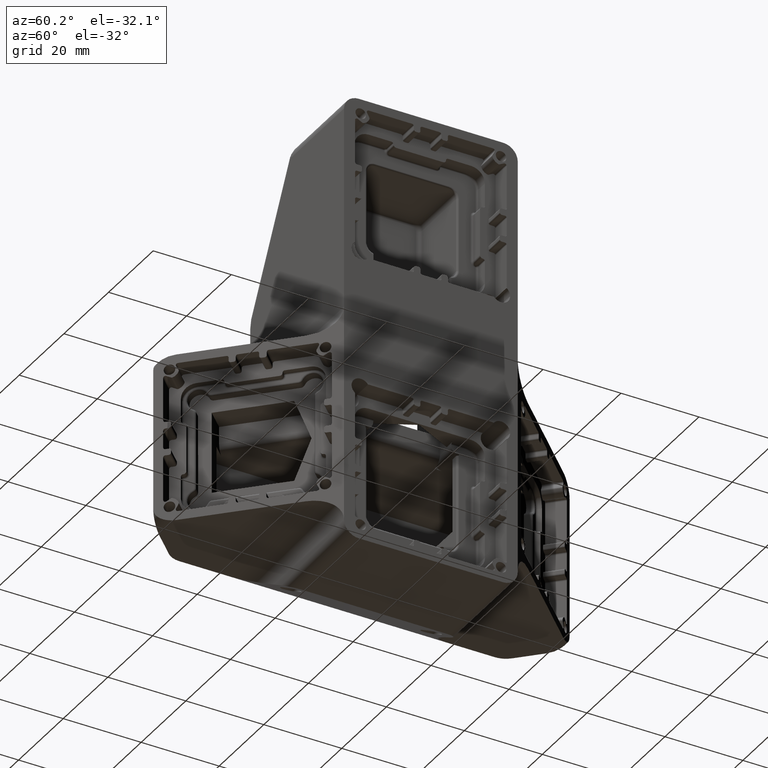
[diagram: clean part render]
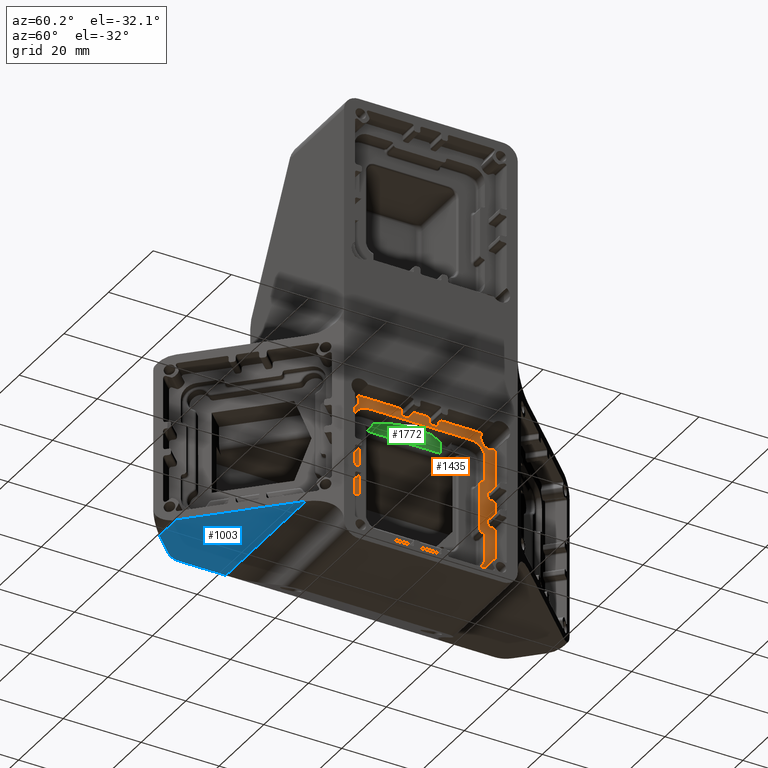
[diagram: same view with three faces highlighted in distinct colors, each labeled with its STEP entity id]
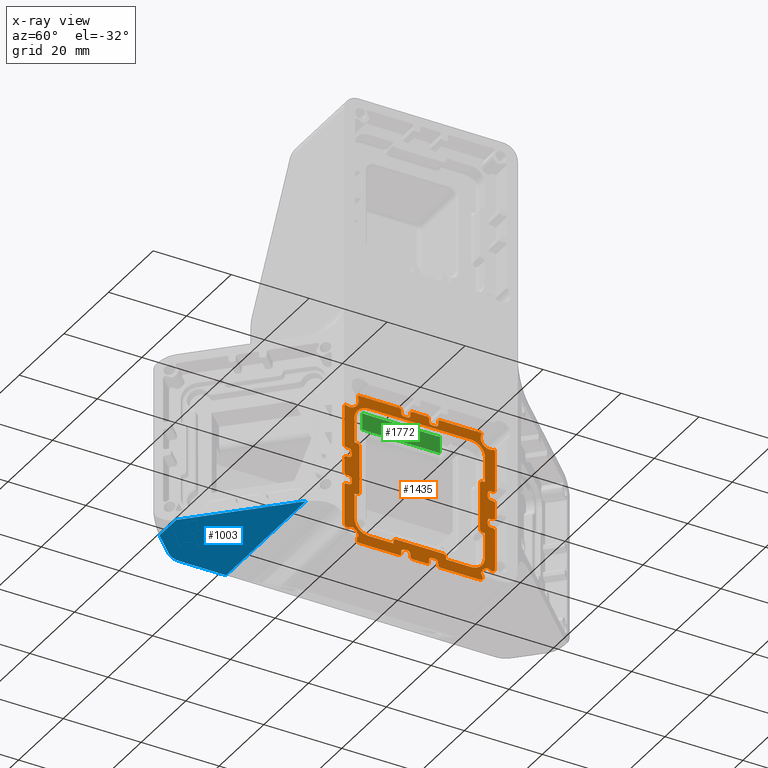
[diagram: x-ray of the same camera — body ghosted, the three highlighted faces saturated]
A machine part, auxiliary view with three faces highlighted in distinct colors.
The next image is the same camera in x-ray (body ghosted, the three faces saturated) — at least one of them is partly hidden behind the body in this view.
Their STEP definitions:

[orange] entity #1435 — the highlighted planar face has unit normal (1, 0, 0).
#527=FACE_BOUND('',#3645,.F.);
#701=PLANE('',#24963);
#1435=ADVANCED_FACE('',(#527,#2531),#701,.T.);
#2531=FACE_OUTER_BOUND('',#3646,.F.);
#3645=EDGE_LOOP('',(#6514,#6515,#6516,#6517,#6518,#6519,#6520,#6521,#6522,
#6523,#6524,#6525,#6526,#6527,#6528,#6529,#6530,#6531,#6532,#6533,#6534,
#6535,#6536,#6537,#6538,#6539,#6540,#6541,#6542,#6543,#6544,#6545,#6546,
#6547,#6548,#6549,#6550,#6551,#6552));
#3646=EDGE_LOOP('',(#6553,#6554,#6555,#6556,#6557,#6558,#6559,#6560,#6561,
#6562,#6563,#6564,#6565,#6566,#6567,#6568,#6569,#6570,#6571,#6572,#6573,
#6574,#6575,#6576,#6577,#6578,#6579,#6580,#6581,#6582,#6583,#6584,#6585,
#6586,#6587,#6588,#6589,#6590,#6591,#6592,#6593,#6594,#6595,#6596,#6597,
#6598,#6599,#6600,#6601,#6602,#6603,#6604,#6605,#6606,#6607,#6608,#6609,
#6610,#6611,#6612,#6613,#6614,#6615,#6616,#6617,#6618,#6619,#6620,#6621,
#6622,#6623,#6624,#6625,#6626,#6627,#6628,#6629,#6630,#6631,#6632,#6633,
#6634,#6635,#6636,#6637,#6638,#6639,#6640,#6641,#6642,#6643,#6644,#6645,
#6646));
#6514=ORIENTED_EDGE('',*,*,#15815,.F.);
#6515=ORIENTED_EDGE('',*,*,#15795,.F.);
#6516=ORIENTED_EDGE('',*,*,#15796,.F.);
#6517=ORIENTED_EDGE('',*,*,#15797,.F.);
#6518=ORIENTED_EDGE('',*,*,#15798,.F.);
#6519=ORIENTED_EDGE('',*,*,#15779,.F.);
#6520=ORIENTED_EDGE('',*,*,#15777,.F.);
#6521=ORIENTED_EDGE('',*,*,#15778,.F.);
#6522=ORIENTED_EDGE('',*,*,#15799,.T.);
#6523=ORIENTED_EDGE('',*,*,#15800,.F.);
#6524=ORIENTED_EDGE('',*,*,#15801,.T.);
#6525=ORIENTED_EDGE('',*,*,#15802,.F.);
#6526=ORIENTED_EDGE('',*,*,#15782,.F.);
#6527=ORIENTED_EDGE('',*,*,#15780,.F.);
#6528=ORIENTED_EDGE('',*,*,#15781,.F.);
#6529=ORIENTED_EDGE('',*,*,#15803,.F.);
#6530=ORIENTED_EDGE('',*,*,#15804,.F.);
#6531=ORIENTED_EDGE('',*,*,#15785,.F.);
#6532=ORIENTED_EDGE('',*,*,#15783,.F.);
#6533=ORIENTED_EDGE('',*,*,#15784,.F.);
#6534=ORIENTED_EDGE('',*,*,#15805,.T.);
#6535=ORIENTED_EDGE('',*,*,#15806,.F.);
#6536=ORIENTED_EDGE('',*,*,#15807,.T.);
#6537=ORIENTED_EDGE('',*,*,#15808,.F.);
#6538=ORIENTED_EDGE('',*,*,#15788,.F.);
#6539=ORIENTED_EDGE('',*,*,#15786,.F.);
#6540=ORIENTED_EDGE('',*,*,#15787,.F.);
#6541=ORIENTED_EDGE('',*,*,#15809,.F.);
#6542=ORIENTED_EDGE('',*,*,#15810,.F.);
#6543=ORIENTED_EDGE('',*,*,#15791,.F.);
#6544=ORIENTED_EDGE('',*,*,#15789,.F.);
#6545=ORIENTED_EDGE('',*,*,#15790,.F.);
#6546=ORIENTED_EDGE('',*,*,#15811,.T.);
#6547=ORIENTED_EDGE('',*,*,#15812,.F.);
#6548=ORIENTED_EDGE('',*,*,#15813,.T.);
#6549=ORIENTED_EDGE('',*,*,#15814,.F.);
#6550=ORIENTED_EDGE('',*,*,#15794,.F.);
#6551=ORIENTED_EDGE('',*,*,#15792,.F.);
#6552=ORIENTED_EDGE('',*,*,#15793,.F.);
#6553=ORIENTED_EDGE('',*,*,#15816,.F.);
#6554=ORIENTED_EDGE('',*,*,#15775,.T.);
#6555=ORIENTED_EDGE('',*,*,#15774,.F.);
#6556=ORIENTED_EDGE('',*,*,#15773,.T.);
#6557=ORIENTED_EDGE('',*,*,#15772,.F.);
#6558=ORIENTED_EDGE('',*,*,#15771,.F.);
#6559=ORIENTED_EDGE('',*,*,#15770,.F.);
#6560=ORIENTED_EDGE('',*,*,#15769,.F.);
#6561=ORIENTED_EDGE('',*,*,#15768,.F.);
#6562=ORIENTED_EDGE('',*,*,#15767,.T.);
#6563=ORIENTED_EDGE('',*,*,#15766,.F.);
#6564=ORIENTED_EDGE('',*,*,#15765,.T.);
#6565=ORIENTED_EDGE('',*,*,#15764,.F.);
#6566=ORIENTED_EDGE('',*,*,#15763,.F.);
#6567=ORIENTED_EDGE('',*,*,#15762,.F.);
#6568=ORIENTED_EDGE('',*,*,#15761,.F.);
#6569=ORIENTED_EDGE('',*,*,#15760,.F.);
#6570=ORIENTED_EDGE('',*,*,#15759,.T.);
#6571=ORIENTED_EDGE('',*,*,#15758,.F.);
#6572=ORIENTED_EDGE('',*,*,#15756,.T.);
#6573=ORIENTED_EDGE('',*,*,#15817,.F.);
#6574=ORIENTED_EDGE('',*,*,#15818,.F.);
#6575=ORIENTED_EDGE('',*,*,#15819,.F.);
#6576=ORIENTED_EDGE('',*,*,#15820,.F.);
#6577=ORIENTED_EDGE('',*,*,#15821,.F.);
#6578=ORIENTED_EDGE('',*,*,#15754,.T.);
#6579=ORIENTED_EDGE('',*,*,#15753,.F.);
#6580=ORIENTED_EDGE('',*,*,#15752,.T.);
#6581=ORIENTED_EDGE('',*,*,#15751,.F.);
#6582=ORIENTED_EDGE('',*,*,#15750,.F.);
#6583=ORIENTED_EDGE('',*,*,#15749,.F.);
#6584=ORIENTED_EDGE('',*,*,#15748,.F.);
#6585=ORIENTED_EDGE('',*,*,#15747,.F.);
#6586=ORIENTED_EDGE('',*,*,#15746,.T.);
#6587=ORIENTED_EDGE('',*,*,#15745,.F.);
#6588=ORIENTED_EDGE('',*,*,#15744,.T.);
#6589=ORIENTED_EDGE('',*,*,#15743,.F.);
#6590=ORIENTED_EDGE('',*,*,#15742,.F.);
#6591=ORIENTED_EDGE('',*,*,#15741,.F.);
#6592=ORIENTED_EDGE('',*,*,#15740,.F.);
#6593=ORIENTED_EDGE('',*,*,#15739,.F.);
#6594=ORIENTED_EDGE('',*,*,#15738,.T.);
#6595=ORIENTED_EDGE('',*,*,#15737,.F.);
#6596=ORIENTED_EDGE('',*,*,#15736,.T.);
#6597=ORIENTED_EDGE('',*,*,#16965,.F.);
#6598=ORIENTED_EDGE('',*,*,#14805,.F.);
#6599=ORIENTED_EDGE('',*,*,#16966,.F.);
#6600=ORIENTED_EDGE('',*,*,#16964,.F.);
#6601=ORIENTED_EDGE('',*,*,#15735,.T.);
#6602=ORIENTED_EDGE('',*,*,#15734,.F.);
#6603=ORIENTED_EDGE('',*,*,#15733,.T.);
#6604=ORIENTED_EDGE('',*,*,#15732,.F.);
#6605=ORIENTED_EDGE('',*,*,#15731,.F.);
#6606=ORIENTED_EDGE('',*,*,#15730,.F.);
#6607=ORIENTED_EDGE('',*,*,#15729,.F.);
#6608=ORIENTED_EDGE('',*,*,#15728,.F.);
#6609=ORIENTED_EDGE('',*,*,#15727,.T.);
#6610=ORIENTED_EDGE('',*,*,#15726,.F.);
#6611=ORIENTED_EDGE('',*,*,#15725,.T.);
#6612=ORIENTED_EDGE('',*,*,#15724,.F.);
#6613=ORIENTED_EDGE('',*,*,#15723,.F.);
#6614=ORIENTED_EDGE('',*,*,#15722,.F.);
#6615=ORIENTED_EDGE('',*,*,#15721,.F.);
#6616=ORIENTED_EDGE('',*,*,#15720,.F.);
#6617=ORIENTED_EDGE('',*,*,#15719,.T.);
#6618=ORIENTED_EDGE('',*,*,#15718,.F.);
#6619=ORIENTED_EDGE('',*,*,#15717,.T.);
#6620=ORIENTED_EDGE('',*,*,#16961,.F.);
#6621=ORIENTED_EDGE('',*,*,#16963,.F.);
#6622=ORIENTED_EDGE('',*,*,#14808,.F.);
#6623=ORIENTED_EDGE('',*,*,#16962,.F.);
#6624=ORIENTED_EDGE('',*,*,#15716,.T.);
#6625=ORIENTED_EDGE('',*,*,#15715,.F.);
#6626=ORIENTED_EDGE('',*,*,#15714,.T.);
#6627=ORIENTED_EDGE('',*,*,#15713,.F.);
#6628=ORIENTED_EDGE('',*,*,#15712,.F.);
#6629=ORIENTED_EDGE('',*,*,#15711,.F.);
#6630=ORIENTED_EDGE('',*,*,#15710,.F.);
#6631=ORIENTED_EDGE('',*,*,#15709,.F.);
#6632=ORIENTED_EDGE('',*,*,#15708,.T.);
#6633=ORIENTED_EDGE('',*,*,#15707,.F.);
#6634=ORIENTED_EDGE('',*,*,#15706,.T.);
#6635=ORIENTED_EDGE('',*,*,#15705,.F.);
#6636=ORIENTED_EDGE('',*,*,#15704,.F.);
#6637=ORIENTED_EDGE('',*,*,#15703,.F.);
#6638=ORIENTED_EDGE('',*,*,#15702,.F.);
#6639=ORIENTED_EDGE('',*,*,#15701,.F.);
#6640=ORIENTED_EDGE('',*,*,#15700,.T.);
#6641=ORIENTED_EDGE('',*,*,#15699,.F.);
#6642=ORIENTED_EDGE('',*,*,#15697,.T.);
#6643=ORIENTED_EDGE('',*,*,#15822,.F.);
#6644=ORIENTED_EDGE('',*,*,#15823,.F.);
#6645=ORIENTED_EDGE('',*,*,#15824,.F.);
#6646=ORIENTED_EDGE('',*,*,#15825,.F.);
#13398=CIRCLE('',#23351,2.35);
#13399=CIRCLE('',#23352,2.35);
#13772=CIRCLE('',#23725,0.800000000000011);
#13773=CIRCLE('',#23726,0.5);
#13774=CIRCLE('',#23727,0.8);
#13775=CIRCLE('',#23728,0.800000000000001);
#13776=CIRCLE('',#23729,0.5);
#13777=CIRCLE('',#23730,0.5);
#13778=CIRCLE('',#23731,0.8);
#13779=CIRCLE('',#23732,0.800000000000001);
#13780=CIRCLE('',#23733,0.5);
#13781=CIRCLE('',#23734,0.800000000000012);
#13782=CIRCLE('',#23735,0.800000000000011);
#13783=CIRCLE('',#23736,0.5);
#13784=CIRCLE('',#23737,0.799999999999998);
#13785=CIRCLE('',#23738,0.800000000000001);
#13786=CIRCLE('',#23739,0.500000000000001);
#13787=CIRCLE('',#23740,0.499999999999999);
#13788=CIRCLE('',#23741,0.8);
#13789=CIRCLE('',#23742,0.800000000000001);
#13790=CIRCLE('',#23743,0.5);
#13791=CIRCLE('',#23744,0.800000000000007);
#13792=CIRCLE('',#23745,0.800000000000011);
#13793=CIRCLE('',#23746,0.5);
#13794=CIRCLE('',#23747,0.8);
#13795=CIRCLE('',#23748,0.800000000000001);
#13796=CIRCLE('',#23749,0.500000000000001);
#13797=CIRCLE('',#23750,0.5);
#13798=CIRCLE('',#23751,0.8);
#13799=CIRCLE('',#23752,0.800000000000001);
#13800=CIRCLE('',#23753,0.5);
#13801=CIRCLE('',#23754,0.8);
#13802=CIRCLE('',#23755,0.800000000000011);
#13803=CIRCLE('',#23756,0.5);
#13804=CIRCLE('',#23757,0.799999999999998);
#13805=CIRCLE('',#23758,0.800000000000001);
#13806=CIRCLE('',#23759,0.500000000000001);
#13807=CIRCLE('',#23760,0.499999999999999);
#13808=CIRCLE('',#23761,0.8);
#13809=CIRCLE('',#23762,0.800000000000001);
#13810=CIRCLE('',#23763,0.5);
#13811=CIRCLE('',#23764,0.800000000000007);
#13812=CIRCLE('',#23765,3.54999999999995);
#13813=CIRCLE('',#23766,0.750000000000001);
#13814=CIRCLE('',#23767,0.75);
#13815=CIRCLE('',#23768,3.54999999999995);
#13816=CIRCLE('',#23769,0.749999999999887);
#13817=CIRCLE('',#23770,0.75);
#13818=CIRCLE('',#23771,3.54999999999995);
#13819=CIRCLE('',#23772,0.750000000000001);
#13820=CIRCLE('',#23773,0.75);
#13821=CIRCLE('',#23774,3.54999999999995);
#13822=CIRCLE('',#23775,0.299999999999998);
#13823=CIRCLE('',#23776,2.34999999999999);
#13824=CIRCLE('',#23777,0.3);
#13825=CIRCLE('',#23778,0.3);
#13826=CIRCLE('',#23779,2.35);
#13827=CIRCLE('',#23780,0.300000000000001);
#14290=CIRCLE('',#24243,2.35);
#14291=CIRCLE('',#24244,2.35);
#14292=CIRCLE('',#24245,2.35);
#14293=CIRCLE('',#24246,2.35);
#14294=CIRCLE('',#24247,2.35);
#14295=CIRCLE('',#24248,2.35);
#14805=EDGE_CURVE('',#23042,#23041,#13398,.T.);
#14808=EDGE_CURVE('',#23038,#23037,#13399,.T.);
#15697=EDGE_CURVE('',#22357,#22356,#13772,.T.);
#15699=EDGE_CURVE('',#22357,#22354,#18326,.T.);
#15700=EDGE_CURVE('',#22353,#22354,#13773,.T.);
#15701=EDGE_CURVE('',#22353,#22352,#18327,.T.);
#15702=EDGE_CURVE('',#22352,#22351,#13774,.T.);
#15703=EDGE_CURVE('',#22351,#22350,#18328,.T.);
#15704=EDGE_CURVE('',#22350,#22349,#13775,.T.);
#15705=EDGE_CURVE('',#22349,#22348,#18329,.T.);
#15706=EDGE_CURVE('',#22347,#22348,#13776,.T.);
#15707=EDGE_CURVE('',#22347,#22346,#18330,.T.);
#15708=EDGE_CURVE('',#22345,#22346,#13777,.T.);
#15709=EDGE_CURVE('',#22345,#22344,#18331,.T.);
#15710=EDGE_CURVE('',#22344,#22343,#13778,.T.);
#15711=EDGE_CURVE('',#22343,#22342,#18332,.T.);
#15712=EDGE_CURVE('',#22342,#22341,#13779,.T.);
#15713=EDGE_CURVE('',#22341,#22340,#18333,.T.);
#15714=EDGE_CURVE('',#22339,#22340,#13780,.T.);
#15715=EDGE_CURVE('',#22339,#22338,#18334,.T.);
#15716=EDGE_CURVE('',#23260,#22338,#13781,.T.);
#15717=EDGE_CURVE('',#22337,#23263,#13782,.T.);
#15718=EDGE_CURVE('',#22337,#22336,#18335,.T.);
#15719=EDGE_CURVE('',#22335,#22336,#13783,.T.);
#15720=EDGE_CURVE('',#22335,#22334,#18336,.T.);
#15721=EDGE_CURVE('',#22334,#22333,#13784,.T.);
#15722=EDGE_CURVE('',#22333,#22332,#18337,.T.);
#15723=EDGE_CURVE('',#22332,#22331,#13785,.T.);
#15724=EDGE_CURVE('',#22331,#22330,#18338,.T.);
#15725=EDGE_CURVE('',#22329,#22330,#13786,.T.);
#15726=EDGE_CURVE('',#22329,#22328,#18339,.T.);
#15727=EDGE_CURVE('',#22327,#22328,#13787,.T.);
#15728=EDGE_CURVE('',#22327,#22326,#18340,.T.);
#15729=EDGE_CURVE('',#22326,#22325,#13788,.T.);
#15730=EDGE_CURVE('',#22325,#22324,#18341,.T.);
#15731=EDGE_CURVE('',#22324,#22323,#13789,.T.);
#15732=EDGE_CURVE('',#22323,#22322,#18342,.T.);
#15733=EDGE_CURVE('',#22321,#22322,#13790,.T.);
#15734=EDGE_CURVE('',#22321,#22320,#18343,.T.);
#15735=EDGE_CURVE('',#23257,#22320,#13791,.T.);
#15736=EDGE_CURVE('',#22319,#23254,#13792,.T.);
#15737=EDGE_CURVE('',#22319,#22318,#18344,.T.);
#15738=EDGE_CURVE('',#22317,#22318,#13793,.T.);
#15739=EDGE_CURVE('',#22317,#22316,#18345,.T.);
#15740=EDGE_CURVE('',#22316,#22315,#13794,.T.);
#15741=EDGE_CURVE('',#22315,#22314,#18346,.T.);
#15742=EDGE_CURVE('',#22314,#22313,#13795,.T.);
#15743=EDGE_CURVE('',#22313,#22312,#18347,.T.);
#15744=EDGE_CURVE('',#22311,#22312,#13796,.T.);
#15745=EDGE_CURVE('',#22311,#22310,#18348,.T.);
#15746=EDGE_CURVE('',#22309,#22310,#13797,.T.);
#15747=EDGE_CURVE('',#22309,#22308,#18349,.T.);
#15748=EDGE_CURVE('',#22308,#22307,#13798,.T.);
#15749=EDGE_CURVE('',#22307,#22306,#18350,.T.);
#15750=EDGE_CURVE('',#22306,#22305,#13799,.T.);
#15751=EDGE_CURVE('',#22305,#22304,#18351,.T.);
#15752=EDGE_CURVE('',#22303,#22304,#13800,.T.);
#15753=EDGE_CURVE('',#22303,#22302,#18352,.T.);
#15754=EDGE_CURVE('',#22301,#22302,#13801,.T.);
#15756=EDGE_CURVE('',#22299,#22298,#13802,.T.);
#15758=EDGE_CURVE('',#22299,#22296,#18355,.T.);
#15759=EDGE_CURVE('',#22295,#22296,#13803,.T.);
#15760=EDGE_CURVE('',#22295,#22294,#18356,.T.);
#15761=EDGE_CURVE('',#22294,#22293,#13804,.T.);
#15762=EDGE_CURVE('',#22293,#22292,#18357,.T.);
#15763=EDGE_CURVE('',#22292,#22291,#13805,.T.);
#15764=EDGE_CURVE('',#22291,#22290,#18358,.T.);
#15765=EDGE_CURVE('',#22289,#22290,#13806,.T.);
#15766=EDGE_CURVE('',#22289,#22288,#18359,.T.);
#15767=EDGE_CURVE('',#22287,#22288,#13807,.T.);
#15768=EDGE_CURVE('',#22287,#22286,#18360,.T.);
#15769=EDGE_CURVE('',#22286,#22285,#13808,.T.);
#15770=EDGE_CURVE('',#22285,#22284,#18361,.T.);
#15771=EDGE_CURVE('',#22284,#22283,#13809,.T.);
#15772=EDGE_CURVE('',#22283,#22282,#18362,.T.);
#15773=EDGE_CURVE('',#22281,#22282,#13810,.T.);
#15774=EDGE_CURVE('',#22281,#22280,#18363,.T.);
#15775=EDGE_CURVE('',#22279,#22280,#13811,.T.);
#15777=EDGE_CURVE('',#22413,#22277,#18365,.T.);
#15778=EDGE_CURVE('',#22400,#22413,#18366,.T.);
#15779=EDGE_CURVE('',#22277,#22414,#18367,.T.);
#15780=EDGE_CURVE('',#22411,#22276,#18368,.T.);
#15781=EDGE_CURVE('',#22396,#22411,#18369,.T.);
#15782=EDGE_CURVE('',#22276,#22412,#18370,.T.);
#15783=EDGE_CURVE('',#22409,#22275,#18371,.T.);
#15784=EDGE_CURVE('',#22394,#22409,#18372,.T.);
#15785=EDGE_CURVE('',#22275,#22410,#18373,.T.);
#15786=EDGE_CURVE('',#22407,#22274,#18374,.T.);
#15787=EDGE_CURVE('',#22390,#22407,#18375,.T.);
#15788=EDGE_CURVE('',#22274,#22408,#18376,.T.);
#15789=EDGE_CURVE('',#22405,#22273,#18377,.T.);
#15790=EDGE_CURVE('',#22388,#22405,#18378,.T.);
#15791=EDGE_CURVE('',#22273,#22406,#18379,.T.);
#15792=EDGE_CURVE('',#22403,#22272,#18380,.T.);
#15793=EDGE_CURVE('',#22384,#22403,#18381,.T.);
#15794=EDGE_CURVE('',#22272,#22404,#18382,.T.);
#15795=EDGE_CURVE('',#22382,#22383,#18383,.T.);
#15796=EDGE_CURVE('',#22402,#22382,#18384,.T.);
#15797=EDGE_CURVE('',#22401,#22402,#13812,.T.);
#15798=EDGE_CURVE('',#22414,#22401,#18385,.T.);
#15799=EDGE_CURVE('',#22400,#22399,#13813,.T.);
#15800=EDGE_CURVE('',#22398,#22399,#18386,.T.);
#15801=EDGE_CURVE('',#22398,#22397,#13814,.T.);
#15802=EDGE_CURVE('',#22412,#22397,#18387,.T.);
#15803=EDGE_CURVE('',#22395,#22396,#13815,.T.);
#15804=EDGE_CURVE('',#22410,#22395,#18388,.T.);
#15805=EDGE_CURVE('',#22394,#22393,#13816,.T.);
#15806=EDGE_CURVE('',#22392,#22393,#18389,.T.);
#15807=EDGE_CURVE('',#22392,#22391,#13817,.T.);
#15808=EDGE_CURVE('',#22408,#22391,#18390,.T.);
#15809=EDGE_CURVE('',#22389,#22390,#13818,.T.);
#15810=EDGE_CURVE('',#22406,#22389,#18391,.T.);
#15811=EDGE_CURVE('',#22388,#22387,#13819,.T.);
#15812=EDGE_CURVE('',#22386,#22387,#18392,.T.);
#15813=EDGE_CURVE('',#22386,#22385,#13820,.T.);
#15814=EDGE_CURVE('',#22404,#22385,#18393,.T.);
#15815=EDGE_CURVE('',#22383,#22384,#13821,.T.);
#15816=EDGE_CURVE('',#22279,#22271,#18394,.T.);
#15817=EDGE_CURVE('',#22270,#22298,#18395,.T.);
#15818=EDGE_CURVE('',#22269,#22270,#13822,.T.);
#15819=EDGE_CURVE('',#22268,#22269,#13823,.T.);
#15820=EDGE_CURVE('',#22267,#22268,#13824,.T.);
#15821=EDGE_CURVE('',#22301,#22267,#18396,.T.);
#15822=EDGE_CURVE('',#22266,#22356,#18397,.T.);
#15823=EDGE_CURVE('',#22265,#22266,#13825,.T.);
#15824=EDGE_CURVE('',#22264,#22265,#13826,.T.);
#15825=EDGE_CURVE('',#22271,#22264,#13827,.T.);
#16961=EDGE_CURVE('',#23035,#23263,#14290,.T.);
#16962=EDGE_CURVE('',#23260,#23038,#14291,.T.);
#16963=EDGE_CURVE('',#23037,#23035,#14292,.T.);
#16964=EDGE_CURVE('',#23257,#23040,#14293,.T.);
#16965=EDGE_CURVE('',#23041,#23254,#14294,.T.);
#16966=EDGE_CURVE('',#23040,#23042,#14295,.T.);
#18326=LINE('',#35908,#20108);
#18327=LINE('',#35910,#20109);
#18328=LINE('',#35912,#20110);
#18329=LINE('',#35914,#20111);
#18330=LINE('',#35916,#20112);
#18331=LINE('',#35918,#20113);
#18332=LINE('',#35920,#20114);
#18333=LINE('',#35922,#20115);
#18334=LINE('',#35924,#20116);
#18335=LINE('',#35927,#20117);
#18336=LINE('',#35929,#20118);
#18337=LINE('',#35931,#20119);
#18338=LINE('',#35933,#20120);
#18339=LINE('',#35935,#20121);
#18340=LINE('',#35937,#20122);
#18341=LINE('',#35939,#20123);
#18342=LINE('',#35941,#20124);
#18343=LINE('',#35943,#20125);
#18344=LINE('',#35946,#20126);
#18345=LINE('',#35948,#20127);
#18346=LINE('',#35950,#20128);
#18347=LINE('',#35952,#20129);
#18348=LINE('',#35954,#20130);
#18349=LINE('',#35956,#20131);
#18350=LINE('',#35958,#20132);
#18351=LINE('',#35960,#20133);
#18352=LINE('',#35962,#20134);
#18355=LINE('',#35967,#20137);
#18356=LINE('',#35969,#20138);
#18357=LINE('',#35971,#20139);
#18358=LINE('',#35973,#20140);
#18359=LINE('',#35975,#20141);
#18360=LINE('',#35977,#20142);
#18361=LINE('',#35979,#20143);
#18362=LINE('',#35981,#20144);
#18363=LINE('',#35983,#20145);
#18365=LINE('',#35986,#20147);
#18366=LINE('',#35987,#20148);
#18367=LINE('',#35988,#20149);
#18368=LINE('',#35989,#20150);
#18369=LINE('',#35990,#20151);
#18370=LINE('',#35991,#20152);
#18371=LINE('',#35992,#20153);
#18372=LINE('',#35993,#20154);
#18373=LINE('',#35994,#20155);
#18374=LINE('',#35995,#20156);
#18375=LINE('',#35996,#20157);
#18376=LINE('',#35997,#20158);
#18377=LINE('',#35998,#20159);
#18378=LINE('',#35999,#20160);
#18379=LINE('',#36000,#20161);
#18380=LINE('',#36001,#20162);
#18381=LINE('',#36002,#20163);
#18382=LINE('',#36003,#20164);
#18383=LINE('',#36004,#20165);
#18384=LINE('',#36005,#20166);
#18385=LINE('',#36007,#20167);
#18386=LINE('',#36009,#20168);
#18387=LINE('',#36011,#20169);
#18388=LINE('',#36013,#20170);
#18389=LINE('',#36015,#20171);
#18390=LINE('',#36017,#20172);
#18391=LINE('',#36019,#20173);
#18392=LINE('',#36021,#20174);
#18393=LINE('',#36023,#20175);
#18394=LINE('',#36025,#20176);
#18395=LINE('',#36026,#20177);
#18396=LINE('',#36030,#20178);
#18397=LINE('',#36031,#20179);
#20108=VECTOR('',#27100,10.118935170535);
#20109=VECTOR('',#27103,0.599993532528117);
#20110=VECTOR('',#27106,0.74999987358121);
#20111=VECTOR('',#27109,0.599993285113584);
#20112=VECTOR('',#27112,3.79999999999991);
#20113=VECTOR('',#27115,0.599993004453893);
#20114=VECTOR('',#27118,0.749999873558863);
#20115=VECTOR('',#27121,0.599992757039303);
#20116=VECTOR('',#27124,10.1189426495775);
#20117=VECTOR('',#27129,10.1189351705328);
#20118=VECTOR('',#27132,0.599993532528117);
#20119=VECTOR('',#27135,0.749999873581203);
#20120=VECTOR('',#27138,0.599993285113612);
#20121=VECTOR('',#27141,3.79999999999988);
#20122=VECTOR('',#27144,0.599993004453864);
#20123=VECTOR('',#27147,0.749999873558806);
#20124=VECTOR('',#27150,0.599992757039331);
#20125=VECTOR('',#27153,10.1189426495775);
#20126=VECTOR('',#27158,10.118935170535);
#20127=VECTOR('',#27161,0.599993532528117);
#20128=VECTOR('',#27164,0.749999873581231);
#20129=VECTOR('',#27167,0.599993285113612);
#20130=VECTOR('',#27170,3.79999999999991);
#20131=VECTOR('',#27173,0.599993004453893);
#20132=VECTOR('',#27176,0.749999873558835);
#20133=VECTOR('',#27179,0.599992757039331);
#20134=VECTOR('',#27182,10.1189426495775);
#20137=VECTOR('',#27189,10.1189351705328);
#20138=VECTOR('',#27192,0.599993532528117);
#20139=VECTOR('',#27195,0.749999873581231);
#20140=VECTOR('',#27198,0.599993285113612);
#20141=VECTOR('',#27201,3.79999999999988);
#20142=VECTOR('',#27204,0.599993004453893);
#20143=VECTOR('',#27207,0.749999873558835);
#20144=VECTOR('',#27210,0.599992757039303);
#20145=VECTOR('',#27213,10.1189426495775);
#20147=VECTOR('',#27217,0.500084898505236);
#20148=VECTOR('',#27218,0.0197750253639697);
#20149=VECTOR('',#27219,0.500084898505279);
#20150=VECTOR('',#27220,0.500000134232499);
#20151=VECTOR('',#27221,5.91876588882774);
#20152=VECTOR('',#27222,0.500000134232535);
#20153=VECTOR('',#27223,0.500084898505264);
#20154=VECTOR('',#27224,0.0197750253639981);
#20155=VECTOR('',#27225,0.500084898505251);
#20156=VECTOR('',#27226,0.50000013423247);
#20157=VECTOR('',#27227,5.918765888827);
#20158=VECTOR('',#27228,0.500000134232507);
#20159=VECTOR('',#27229,0.500084898505293);
#20160=VECTOR('',#27230,0.0197750253639128);
#20161=VECTOR('',#27231,0.500084898505279);
#20162=VECTOR('',#27232,0.500000134232499);
#20163=VECTOR('',#27233,5.91876588882774);
#20164=VECTOR('',#27234,0.500000134232507);
#20165=VECTOR('',#27235,6.48558719344961);
#20166=VECTOR('',#27236,19.8536461322103);
#20167=VECTOR('',#27239,5.92037518717521);
#20168=VECTOR('',#27242,12.0000070948883);
#20169=VECTOR('',#27245,0.0198636821935173);
#20170=VECTOR('',#27248,5.92037518717527);
#20171=VECTOR('',#27251,12.0000070948883);
#20172=VECTOR('',#27254,0.0198636821935741);
#20173=VECTOR('',#27257,5.92037518717521);
#20174=VECTOR('',#27260,12.0000070948883);
#20175=VECTOR('',#27263,0.0198636821935457);
#20176=VECTOR('',#27266,0.667545987816382);
#20177=VECTOR('',#27267,0.667546038423944);
#20178=VECTOR('',#27274,0.667545987816264);
#20179=VECTOR('',#27275,0.66754603842387);
#22264=VERTEX_POINT('',#33048);
#22265=VERTEX_POINT('',#33049);
#22266=VERTEX_POINT('',#33050);
#22267=VERTEX_POINT('',#33051);
#22268=VERTEX_POINT('',#33052);
#22269=VERTEX_POINT('',#33053);
#22270=VERTEX_POINT('',#33054);
#22271=VERTEX_POINT('',#33055);
#22272=VERTEX_POINT('',#33056);
#22273=VERTEX_POINT('',#33057);
#22274=VERTEX_POINT('',#33058);
#22275=VERTEX_POINT('',#33059);
#22276=VERTEX_POINT('',#33060);
#22277=VERTEX_POINT('',#33061);
#22279=VERTEX_POINT('',#33063);
#22280=VERTEX_POINT('',#33064);
#22281=VERTEX_POINT('',#33065);
#22282=VERTEX_POINT('',#33066);
#22283=VERTEX_POINT('',#33067);
#22284=VERTEX_POINT('',#33068);
#22285=VERTEX_POINT('',#33069);
#22286=VERTEX_POINT('',#33070);
#22287=VERTEX_POINT('',#33071);
#22288=VERTEX_POINT('',#33072);
#22289=VERTEX_POINT('',#33073);
#22290=VERTEX_POINT('',#33074);
#22291=VERTEX_POINT('',#33075);
#22292=VERTEX_POINT('',#33076);
#22293=VERTEX_POINT('',#33077);
#22294=VERTEX_POINT('',#33078);
#22295=VERTEX_POINT('',#33079);
#22296=VERTEX_POINT('',#33080);
#22298=VERTEX_POINT('',#33082);
#22299=VERTEX_POINT('',#33083);
#22301=VERTEX_POINT('',#33085);
#22302=VERTEX_POINT('',#33086);
#22303=VERTEX_POINT('',#33087);
#22304=VERTEX_POINT('',#33088);
#22305=VERTEX_POINT('',#33089);
#22306=VERTEX_POINT('',#33090);
#22307=VERTEX_POINT('',#33091);
#22308=VERTEX_POINT('',#33092);
#22309=VERTEX_POINT('',#33093);
#22310=VERTEX_POINT('',#33094);
#22311=VERTEX_POINT('',#33095);
#22312=VERTEX_POINT('',#33096);
#22313=VERTEX_POINT('',#33097);
#22314=VERTEX_POINT('',#33098);
#22315=VERTEX_POINT('',#33099);
#22316=VERTEX_POINT('',#33100);
#22317=VERTEX_POINT('',#33101);
#22318=VERTEX_POINT('',#33102);
#22319=VERTEX_POINT('',#33103);
#22320=VERTEX_POINT('',#33104);
#22321=VERTEX_POINT('',#33105);
#22322=VERTEX_POINT('',#33106);
#22323=VERTEX_POINT('',#33107);
#22324=VERTEX_POINT('',#33108);
#22325=VERTEX_POINT('',#33109);
#22326=VERTEX_POINT('',#33110);
#22327=VERTEX_POINT('',#33111);
#22328=VERTEX_POINT('',#33112);
#22329=VERTEX_POINT('',#33113);
#22330=VERTEX_POINT('',#33114);
#22331=VERTEX_POINT('',#33115);
#22332=VERTEX_POINT('',#33116);
#22333=VERTEX_POINT('',#33117);
#22334=VERTEX_POINT('',#33118);
#22335=VERTEX_POINT('',#33119);
#22336=VERTEX_POINT('',#33120);
#22337=VERTEX_POINT('',#33121);
#22338=VERTEX_POINT('',#33122);
#22339=VERTEX_POINT('',#33123);
#22340=VERTEX_POINT('',#33124);
#22341=VERTEX_POINT('',#33125);
#22342=VERTEX_POINT('',#33126);
#22343=VERTEX_POINT('',#33127);
#22344=VERTEX_POINT('',#33128);
#22345=VERTEX_POINT('',#33129);
#22346=VERTEX_POINT('',#33130);
#22347=VERTEX_POINT('',#33131);
#22348=VERTEX_POINT('',#33132);
#22349=VERTEX_POINT('',#33133);
#22350=VERTEX_POINT('',#33134);
#22351=VERTEX_POINT('',#33135);
#22352=VERTEX_POINT('',#33136);
#22353=VERTEX_POINT('',#33137);
#22354=VERTEX_POINT('',#33138);
#22356=VERTEX_POINT('',#33140);
#22357=VERTEX_POINT('',#33141);
#22382=VERTEX_POINT('',#33166);
#22383=VERTEX_POINT('',#33167);
#22384=VERTEX_POINT('',#33168);
#22385=VERTEX_POINT('',#33169);
#22386=VERTEX_POINT('',#33170);
#22387=VERTEX_POINT('',#33171);
#22388=VERTEX_POINT('',#33172);
#22389=VERTEX_POINT('',#33173);
#22390=VERTEX_POINT('',#33174);
#22391=VERTEX_POINT('',#33175);
#22392=VERTEX_POINT('',#33176);
#22393=VERTEX_POINT('',#33177);
#22394=VERTEX_POINT('',#33178);
#22395=VERTEX_POINT('',#33179);
#22396=VERTEX_POINT('',#33180);
#22397=VERTEX_POINT('',#33181);
#22398=VERTEX_POINT('',#33182);
#22399=VERTEX_POINT('',#33183);
#22400=VERTEX_POINT('',#33184);
#22401=VERTEX_POINT('',#33185);
#22402=VERTEX_POINT('',#33186);
#22403=VERTEX_POINT('',#33187);
#22404=VERTEX_POINT('',#33188);
#22405=VERTEX_POINT('',#33189);
#22406=VERTEX_POINT('',#33190);
#22407=VERTEX_POINT('',#33191);
#22408=VERTEX_POINT('',#33192);
#22409=VERTEX_POINT('',#33193);
#22410=VERTEX_POINT('',#33194);
#22411=VERTEX_POINT('',#33195);
#22412=VERTEX_POINT('',#33196);
#22413=VERTEX_POINT('',#33197);
#22414=VERTEX_POINT('',#33198);
#23035=VERTEX_POINT('',#33819);
#23037=VERTEX_POINT('',#33821);
#23038=VERTEX_POINT('',#33822);
#23040=VERTEX_POINT('',#33824);
#23041=VERTEX_POINT('',#33825);
#23042=VERTEX_POINT('',#33826);
#23254=VERTEX_POINT('',#34038);
#23257=VERTEX_POINT('',#34041);
#23260=VERTEX_POINT('',#34044);
#23263=VERTEX_POINT('',#34047);
#23351=AXIS2_PLACEMENT_3D('',#35014,#25831,#25832);
#23352=AXIS2_PLACEMENT_3D('',#35017,#25835,#25836);
#23725=AXIS2_PLACEMENT_3D('',#35906,#27097,#27098);
#23726=AXIS2_PLACEMENT_3D('',#35909,#27101,#27102);
#23727=AXIS2_PLACEMENT_3D('',#35911,#27104,#27105);
#23728=AXIS2_PLACEMENT_3D('',#35913,#27107,#27108);
#23729=AXIS2_PLACEMENT_3D('',#35915,#27110,#27111);
#23730=AXIS2_PLACEMENT_3D('',#35917,#27113,#27114);
#23731=AXIS2_PLACEMENT_3D('',#35919,#27116,#27117);
#23732=AXIS2_PLACEMENT_3D('',#35921,#27119,#27120);
#23733=AXIS2_PLACEMENT_3D('',#35923,#27122,#27123);
#23734=AXIS2_PLACEMENT_3D('',#35925,#27125,#27126);
#23735=AXIS2_PLACEMENT_3D('',#35926,#27127,#27128);
#23736=AXIS2_PLACEMENT_3D('',#35928,#27130,#27131);
#23737=AXIS2_PLACEMENT_3D('',#35930,#27133,#27134);
#23738=AXIS2_PLACEMENT_3D('',#35932,#27136,#27137);
#23739=AXIS2_PLACEMENT_3D('',#35934,#27139,#27140);
#23740=AXIS2_PLACEMENT_3D('',#35936,#27142,#27143);
#23741=AXIS2_PLACEMENT_3D('',#35938,#27145,#27146);
#23742=AXIS2_PLACEMENT_3D('',#35940,#27148,#27149);
#23743=AXIS2_PLACEMENT_3D('',#35942,#27151,#27152);
#23744=AXIS2_PLACEMENT_3D('',#35944,#27154,#27155);
#23745=AXIS2_PLACEMENT_3D('',#35945,#27156,#27157);
#23746=AXIS2_PLACEMENT_3D('',#35947,#27159,#27160);
#23747=AXIS2_PLACEMENT_3D('',#35949,#27162,#27163);
#23748=AXIS2_PLACEMENT_3D('',#35951,#27165,#27166);
#23749=AXIS2_PLACEMENT_3D('',#35953,#27168,#27169);
#23750=AXIS2_PLACEMENT_3D('',#35955,#27171,#27172);
#23751=AXIS2_PLACEMENT_3D('',#35957,#27174,#27175);
#23752=AXIS2_PLACEMENT_3D('',#35959,#27177,#27178);
#23753=AXIS2_PLACEMENT_3D('',#35961,#27180,#27181);
#23754=AXIS2_PLACEMENT_3D('',#35963,#27183,#27184);
#23755=AXIS2_PLACEMENT_3D('',#35965,#27186,#27187);
#23756=AXIS2_PLACEMENT_3D('',#35968,#27190,#27191);
#23757=AXIS2_PLACEMENT_3D('',#35970,#27193,#27194);
#23758=AXIS2_PLACEMENT_3D('',#35972,#27196,#27197);
#23759=AXIS2_PLACEMENT_3D('',#35974,#27199,#27200);
#23760=AXIS2_PLACEMENT_3D('',#35976,#27202,#27203);
#23761=AXIS2_PLACEMENT_3D('',#35978,#27205,#27206);
#23762=AXIS2_PLACEMENT_3D('',#35980,#27208,#27209);
#23763=AXIS2_PLACEMENT_3D('',#35982,#27211,#27212);
#23764=AXIS2_PLACEMENT_3D('',#35984,#27214,#27215);
#23765=AXIS2_PLACEMENT_3D('',#36006,#27237,#27238);
#23766=AXIS2_PLACEMENT_3D('',#36008,#27240,#27241);
#23767=AXIS2_PLACEMENT_3D('',#36010,#27243,#27244);
#23768=AXIS2_PLACEMENT_3D('',#36012,#27246,#27247);
#23769=AXIS2_PLACEMENT_3D('',#36014,#27249,#27250);
#23770=AXIS2_PLACEMENT_3D('',#36016,#27252,#27253);
#23771=AXIS2_PLACEMENT_3D('',#36018,#27255,#27256);
#23772=AXIS2_PLACEMENT_3D('',#36020,#27258,#27259);
#23773=AXIS2_PLACEMENT_3D('',#36022,#27261,#27262);
#23774=AXIS2_PLACEMENT_3D('',#36024,#27264,#27265);
#23775=AXIS2_PLACEMENT_3D('',#36027,#27268,#27269);
#23776=AXIS2_PLACEMENT_3D('',#36028,#27270,#27271);
#23777=AXIS2_PLACEMENT_3D('',#36029,#27272,#27273);
#23778=AXIS2_PLACEMENT_3D('',#36032,#27276,#27277);
#23779=AXIS2_PLACEMENT_3D('',#36033,#27278,#27279);
#23780=AXIS2_PLACEMENT_3D('',#36034,#27280,#27281);
#24243=AXIS2_PLACEMENT_3D('',#37340,#28867,#28868);
#24244=AXIS2_PLACEMENT_3D('',#37341,#28869,#28870);
#24245=AXIS2_PLACEMENT_3D('',#37342,#28871,#28872);
#24246=AXIS2_PLACEMENT_3D('',#37343,#28873,#28874);
#24247=AXIS2_PLACEMENT_3D('',#37344,#28875,#28876);
#24248=AXIS2_PLACEMENT_3D('',#37345,#28877,#28878);
#24963=AXIS2_PLACEMENT_3D('',#39042,#30719,#30720);
#25831=DIRECTION('',(-1.,0.,0.));
#25832=DIRECTION('',(0.,0.962540802885523,-0.27113687093513));
#25835=DIRECTION('',(-1.,0.,0.));
#25836=DIRECTION('',(0.,-0.271139171971669,-0.962540154706554));
#27097=DIRECTION('',(-1.,0.,0.));
#27098=DIRECTION('',(0.,1.,0.));
#27100=DIRECTION('',(0.,-6.67583769243106E-07,0.999999999999777));
#27101=DIRECTION('',(-1.,0.,0.));
#27102=DIRECTION('',(0.,0.,1.));
#27103=DIRECTION('',(0.,-1.,0.));
#27104=DIRECTION('',(-1.,0.,0.));
#27105=DIRECTION('',(0.,0.,-1.));
#27106=DIRECTION('',(0.,0.,1.));
#27107=DIRECTION('',(-1.,0.,0.));
#27108=DIRECTION('',(0.,-1.,0.));
#27109=DIRECTION('',(0.,1.,0.));
#27110=DIRECTION('',(-1.,0.,0.));
#27111=DIRECTION('',(0.,1.,0.));
#27112=DIRECTION('',(0.,-7.38541186101926E-08,0.999999999999997));
#27113=DIRECTION('',(-1.,0.,0.));
#27114=DIRECTION('',(0.,0.,1.));
#27115=DIRECTION('',(0.,-1.,0.));
#27116=DIRECTION('',(-1.,0.,0.));
#27117=DIRECTION('',(0.,0.,-1.));
#27118=DIRECTION('',(0.,0.,1.));
#27119=DIRECTION('',(-1.,0.,0.));
#27120=DIRECTION('',(0.,-1.,0.));
#27121=DIRECTION('',(0.,1.,0.));
#27122=DIRECTION('',(-1.,0.,0.));
#27123=DIRECTION('',(0.,1.,0.));
#27124=DIRECTION('',(0.,-1.51321195666618E-08,1.));
#27125=DIRECTION('',(-1.,0.,0.));
#27126=DIRECTION('',(0.,0.709461456068527,0.704744238964127));
#27127=DIRECTION('',(-1.,0.,0.));
#27128=DIRECTION('',(0.,0.,1.));
#27129=DIRECTION('',(0.,-0.999999999999777,-6.67583768541063E-07));
#27130=DIRECTION('',(-1.,0.,0.));
#27131=DIRECTION('',(0.,-1.,0.));
#27132=DIRECTION('',(0.,0.,-1.));
#27133=DIRECTION('',(-1.,0.,0.));
#27134=DIRECTION('',(0.,1.,0.));
#27135=DIRECTION('',(0.,-1.,0.));
#27136=DIRECTION('',(-1.,0.,0.));
#27137=DIRECTION('',(0.,0.,-1.));
#27138=DIRECTION('',(0.,0.,1.));
#27139=DIRECTION('',(-1.,0.,0.));
#27140=DIRECTION('',(0.,-7.38541530154178E-08,0.999999999999997));
#27141=DIRECTION('',(0.,-0.999999999999997,-7.3854124219741E-08));
#27142=DIRECTION('',(-1.,0.,0.));
#27143=DIRECTION('',(0.,-1.,0.));
#27144=DIRECTION('',(0.,0.,-1.));
#27145=DIRECTION('',(-1.,0.,0.));
#27146=DIRECTION('',(0.,1.,0.));
#27147=DIRECTION('',(0.,-1.,0.));
#27148=DIRECTION('',(-1.,0.,0.));
#27149=DIRECTION('',(0.,0.,-1.));
#27150=DIRECTION('',(0.,0.,1.));
#27151=DIRECTION('',(-1.,0.,0.));
#27152=DIRECTION('',(0.,-1.51321160046791E-08,1.));
#27153=DIRECTION('',(0.,-1.,-1.51321181622804E-08));
#27154=DIRECTION('',(-1.,0.,0.));
#27155=DIRECTION('',(0.,-0.704746841500865,0.7094588708266));
#27156=DIRECTION('',(-1.,0.,0.));
#27157=DIRECTION('',(0.,-1.,0.));
#27158=DIRECTION('',(0.,6.67583769243106E-07,-0.999999999999777));
#27159=DIRECTION('',(-1.,0.,0.));
#27160=DIRECTION('',(0.,0.,-1.));
#27161=DIRECTION('',(0.,1.,0.));
#27162=DIRECTION('',(-1.,0.,0.));
#27163=DIRECTION('',(0.,0.,1.));
#27164=DIRECTION('',(0.,0.,-1.));
#27165=DIRECTION('',(-1.,0.,0.));
#27166=DIRECTION('',(0.,1.,0.));
#27167=DIRECTION('',(0.,-1.,0.));
#27168=DIRECTION('',(-1.,0.,0.));
#27169=DIRECTION('',(0.,-0.999999999999997,-7.38541103828536E-08));
#27170=DIRECTION('',(0.,7.38541186101926E-08,-0.999999999999997));
#27171=DIRECTION('',(-1.,0.,0.));
#27172=DIRECTION('',(0.,0.,-1.));
#27173=DIRECTION('',(0.,1.,0.));
#27174=DIRECTION('',(-1.,0.,0.));
#27175=DIRECTION('',(0.,0.,1.));
#27176=DIRECTION('',(0.,0.,-1.));
#27177=DIRECTION('',(-1.,0.,0.));
#27178=DIRECTION('',(0.,1.,0.));
#27179=DIRECTION('',(0.,-1.,0.));
#27180=DIRECTION('',(-1.,0.,0.));
#27181=DIRECTION('',(0.,-1.,-1.51321302155338E-08));
#27182=DIRECTION('',(0.,1.51321195666618E-08,-1.));
#27183=DIRECTION('',(-1.,0.,0.));
#27184=DIRECTION('',(0.,0.469471562788471,-0.882947592857555));
#27186=DIRECTION('',(-1.,0.,0.));
#27187=DIRECTION('',(0.,0.,-1.));
#27189=DIRECTION('',(0.,0.999999999999777,6.67583767838873E-07));
#27190=DIRECTION('',(-1.,0.,0.));
#27191=DIRECTION('',(0.,1.,0.));
#27192=DIRECTION('',(0.,0.,1.));
#27193=DIRECTION('',(-1.,0.,0.));
#27194=DIRECTION('',(0.,-1.,0.));
#27195=DIRECTION('',(0.,1.,0.));
#27196=DIRECTION('',(-1.,0.,0.));
#27197=DIRECTION('',(0.,0.,1.));
#27198=DIRECTION('',(0.,0.,-1.));
#27199=DIRECTION('',(-1.,0.,0.));
#27200=DIRECTION('',(0.,7.38541530154178E-08,-0.999999999999997));
#27201=DIRECTION('',(0.,0.999999999999997,7.38541167403438E-08));
#27202=DIRECTION('',(-1.,0.,0.));
#27203=DIRECTION('',(0.,1.,0.));
#27204=DIRECTION('',(0.,0.,1.));
#27205=DIRECTION('',(-1.,0.,0.));
#27206=DIRECTION('',(0.,-1.,0.));
#27207=DIRECTION('',(0.,1.,0.));
#27208=DIRECTION('',(-1.,0.,0.));
#27209=DIRECTION('',(0.,0.,1.));
#27210=DIRECTION('',(0.,0.,-1.));
#27211=DIRECTION('',(-1.,0.,0.));
#27212=DIRECTION('',(0.,1.51321160046791E-08,-1.));
#27213=DIRECTION('',(0.,1.,1.51321188644711E-08));
#27214=DIRECTION('',(-1.,0.,0.));
#27215=DIRECTION('',(0.,0.882947592857563,0.469471562788456));
#27217=DIRECTION('',(0.,-1.,3.7334670968336E-09));
#27218=DIRECTION('',(0.,-1.,3.73254537135735E-09));
#27219=DIRECTION('',(0.,0.000169786328465105,0.999999985586301));
#27220=DIRECTION('',(0.,-4.97665590136311E-07,0.999999999999876));
#27221=DIRECTION('',(0.,-4.97665617310074E-07,0.999999999999876));
#27222=DIRECTION('',(0.,0.999999999999974,2.29200604025626E-07));
#27223=DIRECTION('',(0.,-3.73346709683339E-09,-1.));
#27224=DIRECTION('',(0.,-3.73254537135198E-09,-1.));
#27225=DIRECTION('',(0.,-0.999999985586301,0.000169786328465115));
#27226=DIRECTION('',(0.,-0.999999999999876,-4.97665590136339E-07));
#27227=DIRECTION('',(0.,-0.999999999999876,-4.97665616109645E-07));
#27228=DIRECTION('',(0.,-2.29200675079894E-07,0.999999999999974));
#27229=DIRECTION('',(0.,1.,-3.73341026306452E-09));
#27230=DIRECTION('',(0.,1.,-3.73398262411023E-09));
#27231=DIRECTION('',(0.,-0.000169786328465105,-0.999999985586301));
#27232=DIRECTION('',(0.,4.97665646979715E-07,-0.999999999999876));
#27233=DIRECTION('',(0.,4.97665617310074E-07,-0.999999999999876));
#27234=DIRECTION('',(0.,-0.999999999999974,-2.29200682185319E-07));
#27235=DIRECTION('',(0.,0.999999985586301,-0.000169786328471426));
#27236=DIRECTION('',(0.,0.999999999999876,4.97665615187983E-07));
#27237=DIRECTION('',(-1.,0.,0.));
#27238=DIRECTION('',(0.,-0.999999985586301,0.000169786327545118));
#27239=DIRECTION('',(0.,0.000169786328469747,0.999999985586301));
#27240=DIRECTION('',(-1.,0.,0.));
#27241=DIRECTION('',(0.,0.,1.));
#27242=DIRECTION('',(0.,3.94549818615173E-08,0.999999999999999));
#27243=DIRECTION('',(-1.,0.,0.));
#27244=DIRECTION('',(0.,0.999999999999999,-3.94543064885511E-08));
#27245=DIRECTION('',(0.,0.999999999999974,2.2920163160957E-07));
#27246=DIRECTION('',(-1.,0.,0.));
#27247=DIRECTION('',(0.,-0.000169786327545118,-0.999999985586301));
#27248=DIRECTION('',(0.,-0.999999985586301,0.000169786328468545));
#27249=DIRECTION('',(-1.,0.,0.));
#27250=DIRECTION('',(0.,-1.,0.));
#27251=DIRECTION('',(0.,-0.999999999999999,3.94549848221103E-08));
#27252=DIRECTION('',(-1.,0.,0.));
#27253=DIRECTION('',(0.,3.94542591190353E-08,0.999999999999999));
#27254=DIRECTION('',(0.,-2.29200200771009E-07,0.999999999999974));
#27255=DIRECTION('',(-1.,0.,0.));
#27256=DIRECTION('',(0.,0.999999985586301,-0.000169786327545118));
#27257=DIRECTION('',(0.,-0.000169786328474548,-0.999999985586301));
#27258=DIRECTION('',(-1.,0.,0.));
#27259=DIRECTION('',(0.,0.,-1.));
#27260=DIRECTION('',(0.,-3.94549818615173E-08,-0.999999999999999));
#27261=DIRECTION('',(-1.,0.,0.));
#27262=DIRECTION('',(0.,-0.999999999999999,3.94543064885511E-08));
#27263=DIRECTION('',(0.,-0.999999999999974,-2.29200200771337E-07));
#27264=DIRECTION('',(-1.,0.,0.));
#27265=DIRECTION('',(0.,0.000169786327545118,0.999999985586301));
#27266=DIRECTION('',(0.,-0.469471562781457,0.882947592861284));
#27267=DIRECTION('',(0.,-0.469471562785126,-0.882947592859334));
#27268=DIRECTION('',(-1.,0.,0.));
#27269=DIRECTION('',(0.,0.962541348002149,0.27113493575378));
#27270=DIRECTION('',(-1.,0.,0.));
#27271=DIRECTION('',(0.,0.27113488927195,0.962541361095453));
#27272=DIRECTION('',(-1.,0.,0.));
#27273=DIRECTION('',(0.,-0.469471562781515,0.882947592861253));
#27274=DIRECTION('',(0.,0.882947592861217,0.469471562781583));
#27275=DIRECTION('',(0.,0.882947592859272,-0.469471562785241));
#27276=DIRECTION('',(-1.,0.,0.));
#27277=DIRECTION('',(0.,-0.271134935753708,0.962541348002169));
#27278=DIRECTION('',(-1.,0.,0.));
#27279=DIRECTION('',(0.,-0.962541361095441,0.271134889271994));
#27280=DIRECTION('',(-1.,0.,0.));
#27281=DIRECTION('',(0.,-0.882947592861283,-0.469471562781459));
#28867=DIRECTION('',(-1.,0.,0.));
#28868=DIRECTION('',(0.,-1.,0.));
#28869=DIRECTION('',(-1.,0.,0.));
#28870=DIRECTION('',(0.,0.47555730942611,-0.87968474208173));
#28871=DIRECTION('',(-1.,0.,0.));
#28872=DIRECTION('',(0.,-0.962542071145572,-0.271132368548634));
#28873=DIRECTION('',(-1.,0.,0.));
#28874=DIRECTION('',(0.,0.879683878638013,0.475558906618708));
#28875=DIRECTION('',(-1.,0.,0.));
#28876=DIRECTION('',(0.,0.271133035928126,-0.962541883155428));
#28877=DIRECTION('',(-1.,0.,0.));
#28878=DIRECTION('',(0.,1.,0.));
#30719=DIRECTION('',(1.,0.,0.));
#30720=DIRECTION('',(0.,1.,0.));
#33048=CARTESIAN_POINT('',(69.8649997447654,-184.261966885416,-53.3628188779748));
#33049=CARTESIAN_POINT('',(69.8649997447654,-182.637161785863,-51.7380136999589));
#33050=CARTESIAN_POINT('',(69.8649997447654,-182.414979836302,-51.7618918265018));
#33051=CARTESIAN_POINT('',(69.8649997447654,-217.585003522105,-51.7618995340892));
#33052=CARTESIAN_POINT('',(69.8649997447654,-217.362821586489,-51.7380214036189));
#33053=CARTESIAN_POINT('',(69.8649997447654,-215.738016408473,-53.3628265031718));
#33054=CARTESIAN_POINT('',(69.8649997447654,-215.761894535016,-53.5850084527335));
#33055=CARTESIAN_POINT('',(69.8649997447654,-184.238088754946,-53.5850008135908));
#33056=CARTESIAN_POINT('',(69.8649997447654,-183.28013151323,-29.249985494454));
#33057=CARTESIAN_POINT('',(69.8649997447654,-183.280135884845,-42.7499927104352));
#33058=CARTESIAN_POINT('',(69.8649997447654,-193.24999196308,-52.7198531565094));
#33059=CARTESIAN_POINT('',(69.8649997447654,-206.749999179062,-52.7198487848948));
#33060=CARTESIAN_POINT('',(69.8649997447654,-216.719859625136,-42.7499927066585));
#33061=CARTESIAN_POINT('',(69.8649997447654,-216.719855253522,-29.2499854906773));
#33063=CARTESIAN_POINT('',(69.8649997447654,-183.924694896818,-54.1744089366568));
#33064=CARTESIAN_POINT('',(69.8649997447654,-184.631052969587,-55.349986186887));
#33065=CARTESIAN_POINT('',(69.8649997447654,-194.749995617655,-55.349986340008));
#33066=CARTESIAN_POINT('',(69.8649997447654,-195.249995625221,-54.8499863400076));
#33067=CARTESIAN_POINT('',(69.8649997447654,-195.249995625221,-54.2499935829679));
#33068=CARTESIAN_POINT('',(69.8649997447654,-196.049995625219,-53.4499935829676));
#33069=CARTESIAN_POINT('',(69.8649997447654,-196.799995498778,-53.4499935829658));
#33070=CARTESIAN_POINT('',(69.8649997447654,-197.59999549878,-54.2499935829656));
#33071=CARTESIAN_POINT('',(69.8649997447654,-197.59999549878,-54.8499865874194));
#33072=CARTESIAN_POINT('',(69.8649997447654,-198.099995461853,-55.3499865874193));
#33073=CARTESIAN_POINT('',(69.8649997447654,-201.899995461853,-55.349986868065));
#33074=CARTESIAN_POINT('',(69.8649997447654,-202.39999549878,-54.8499868680648));
#33075=CARTESIAN_POINT('',(69.8649997447654,-202.39999549878,-54.2499935829511));
#33076=CARTESIAN_POINT('',(69.8649997447654,-203.199995498778,-53.449993582951));
#33077=CARTESIAN_POINT('',(69.8649997447654,-203.949995372359,-53.4499935829493));
#33078=CARTESIAN_POINT('',(69.8649997447654,-204.749995372361,-54.2499935829485));
#33079=CARTESIAN_POINT('',(69.8649997447654,-204.749995372361,-54.8499871154764));
#33080=CARTESIAN_POINT('',(69.8649997447654,-205.249995038571,-55.3499871154761));
#33082=CARTESIAN_POINT('',(69.8649997447654,-216.075288416905,-54.1744166204824));
#33083=CARTESIAN_POINT('',(69.8649997447654,-215.368930275865,-55.349993870713));
#33085=CARTESIAN_POINT('',(69.8649997447654,-218.174411645171,-52.0752933922175));
#33086=CARTESIAN_POINT('',(69.8649997447654,-219.349988895401,-51.3689353194483));
#33087=CARTESIAN_POINT('',(69.8649997447654,-219.349989048522,-41.2499926713799));
#33088=CARTESIAN_POINT('',(69.8649997447654,-218.849989048521,-40.7499926638138));
#33089=CARTESIAN_POINT('',(69.8649997447654,-218.249996291482,-40.7499926638143));
#33090=CARTESIAN_POINT('',(69.8649997447654,-217.449996291481,-39.9499926638153));
#33091=CARTESIAN_POINT('',(69.8649997447654,-217.44999629148,-39.1999927902564));
#33092=CARTESIAN_POINT('',(69.8649997447654,-218.249996291479,-38.3999927902555));
#33093=CARTESIAN_POINT('',(69.8649997447654,-218.849989295933,-38.3999927902553));
#33094=CARTESIAN_POINT('',(69.8649997447654,-219.349989295933,-37.8999928271824));
#33095=CARTESIAN_POINT('',(69.8649997447654,-219.349989576579,-34.0999928271825));
#33096=CARTESIAN_POINT('',(69.8649997447654,-218.849989576579,-33.5999927902554));
#33097=CARTESIAN_POINT('',(69.8649997447654,-218.249996291465,-33.5999927902556));
#33098=CARTESIAN_POINT('',(69.8649997447654,-217.449996291465,-32.7999927902565));
#33099=CARTESIAN_POINT('',(69.8649997447654,-217.449996291463,-32.0499929166753));
#33100=CARTESIAN_POINT('',(69.8649997447654,-218.249996291462,-31.2499929166744));
#33101=CARTESIAN_POINT('',(69.8649997447654,-218.84998982399,-31.2499929166738));
#33102=CARTESIAN_POINT('',(69.8649997447654,-219.34998982399,-30.7499932504657));
#33103=CARTESIAN_POINT('',(69.8649997447654,-219.349996579227,-20.6310580131703));
#33104=CARTESIAN_POINT('',(69.8649997447654,-215.368938027962,-16.6499993936344));
#33105=CARTESIAN_POINT('',(69.8649997447654,-205.249995379894,-16.6499992405134));
#33106=CARTESIAN_POINT('',(69.8649997447654,-204.749995372328,-17.1499992405136));
#33107=CARTESIAN_POINT('',(69.8649997447654,-204.749995372328,-17.7499919975531));
#33108=CARTESIAN_POINT('',(69.8649997447654,-203.94999537233,-18.5499919975539));
#33109=CARTESIAN_POINT('',(69.8649997447654,-203.199995498771,-18.5499919975556));
#33110=CARTESIAN_POINT('',(69.8649997447654,-202.399995498769,-17.7499919975557));
#33111=CARTESIAN_POINT('',(69.8649997447654,-202.399995498769,-17.149998993102));
#33112=CARTESIAN_POINT('',(69.8649997447654,-201.899995535696,-16.6499989931021));
#33113=CARTESIAN_POINT('',(69.8649997447654,-198.099995535696,-16.6499987124564));
#33114=CARTESIAN_POINT('',(69.8649997447654,-197.599995498769,-17.1499987124565));
#33115=CARTESIAN_POINT('',(69.8649997447654,-197.599995498769,-17.7499919975702));
#33116=CARTESIAN_POINT('',(69.8649997447654,-196.799995498771,-18.5499919975704));
#33117=CARTESIAN_POINT('',(69.8649997447654,-196.04999562519,-18.5499919975722));
#33118=CARTESIAN_POINT('',(69.8649997447654,-195.249995625188,-17.7499919975725));
#33119=CARTESIAN_POINT('',(69.8649997447654,-195.249995625188,-17.1499984650448));
#33120=CARTESIAN_POINT('',(69.8649997447654,-194.749995958978,-16.6499984650453));
#33121=CARTESIAN_POINT('',(69.8649997447654,-184.631060721684,-16.6499917098084));
#33122=CARTESIAN_POINT('',(69.8649997447654,-180.650002102148,-20.6310502610731));
#33123=CARTESIAN_POINT('',(69.8649997447654,-180.650001949027,-30.7499929129246));
#33124=CARTESIAN_POINT('',(69.8649997447654,-181.150001949028,-31.2499929167076));
#33125=CARTESIAN_POINT('',(69.8649997447654,-181.749994706067,-31.2499929167071));
#33126=CARTESIAN_POINT('',(69.8649997447654,-182.549994706068,-32.0499929167052));
#33127=CARTESIAN_POINT('',(69.8649997447654,-182.549994706069,-32.7999927902641));
#33128=CARTESIAN_POINT('',(69.8649997447654,-181.74999470607,-33.5999927902659));
#33129=CARTESIAN_POINT('',(69.8649997447654,-181.150001701616,-33.5999927902661));
#33130=CARTESIAN_POINT('',(69.8649997447654,-180.650001701616,-34.0999927718026));
#33131=CARTESIAN_POINT('',(69.8649997447654,-180.65000142097,-37.8999927718025));
#33132=CARTESIAN_POINT('',(69.8649997447654,-181.15000142097,-38.399992790266));
#33133=CARTESIAN_POINT('',(69.8649997447654,-181.749994706084,-38.3999927902658));
#33134=CARTESIAN_POINT('',(69.8649997447654,-182.549994706084,-39.1999927902639));
#33135=CARTESIAN_POINT('',(69.8649997447654,-182.549994706086,-39.9499926638452));
#33136=CARTESIAN_POINT('',(69.8649997447654,-181.749994706087,-40.749992663847));
#33137=CARTESIAN_POINT('',(69.8649997447654,-181.150001173559,-40.7499926638476));
#33138=CARTESIAN_POINT('',(69.8649997447654,-180.650001173559,-41.2499924969516));
#33140=CARTESIAN_POINT('',(69.8649997447654,-181.825571668553,-52.0752857083915));
#33141=CARTESIAN_POINT('',(69.8649997447654,-180.649994418322,-51.3689275673511));
#33166=CARTESIAN_POINT('',(69.8649997447654,-193.315119066135,-19.2801216520176));
#33167=CARTESIAN_POINT('',(69.8649997447654,-186.829531966166,-19.2812195225631));
#33168=CARTESIAN_POINT('',(69.8649997447654,-183.280134707629,-22.8312194713945));
#33169=CARTESIAN_POINT('',(69.8649997447654,-183.799995329656,-29.2499856136071));
#33170=CARTESIAN_POINT('',(69.8649997447654,-184.549995332457,-29.9999855840164));
#33171=CARTESIAN_POINT('',(69.8649997447654,-184.549995805917,-41.9999926789046));
#33172=CARTESIAN_POINT('',(69.8649997447654,-183.799995807781,-42.7499927084951));
#33173=CARTESIAN_POINT('',(69.8649997447654,-183.28122599119,-49.1704527035731));
#33174=CARTESIAN_POINT('',(69.8649997447654,-186.831225940021,-52.7198499621103));
#33175=CARTESIAN_POINT('',(69.8649997447654,-193.249992082234,-52.1999893400833));
#33176=CARTESIAN_POINT('',(69.8649997447654,-193.999992052643,-51.4499893372826));
#33177=CARTESIAN_POINT('',(69.8649997447654,-205.999999147531,-51.4499888638225));
#33178=CARTESIAN_POINT('',(69.8649997447654,-206.749999177122,-52.1999888619578));
#33179=CARTESIAN_POINT('',(69.8649997447654,-213.1704591722,-52.7187586785495));
#33180=CARTESIAN_POINT('',(69.8649997447654,-216.719856430737,-49.168758729718));
#33181=CARTESIAN_POINT('',(69.8649997447654,-216.19999580871,-42.7499925875054));
#33182=CARTESIAN_POINT('',(69.8649997447654,-215.449995805909,-41.9999926170961));
#33183=CARTESIAN_POINT('',(69.8649997447654,-215.449995332449,-29.9999855222079));
#33184=CARTESIAN_POINT('',(69.8649997447654,-216.199995330585,-29.2499854926174));
#33185=CARTESIAN_POINT('',(69.8649997447654,-216.718765147176,-22.8295254975394));
#33186=CARTESIAN_POINT('',(69.8649997447654,-213.168765198345,-19.2801282390022));
#33187=CARTESIAN_POINT('',(69.8649997447654,-183.280131762063,-28.7499853315715));
#33188=CARTESIAN_POINT('',(69.8649997447654,-183.780131647462,-29.2499855517542));
#33189=CARTESIAN_POINT('',(69.8649997447654,-183.78022078335,-42.7499927085497));
#33190=CARTESIAN_POINT('',(69.8649997447654,-183.280220792423,-43.2500776017324));
#33191=CARTESIAN_POINT('',(69.8649997447654,-192.749991092457,-52.7198514348931));
#33192=CARTESIAN_POINT('',(69.8649997447654,-193.249992077681,-52.2198530222769));
#33193=CARTESIAN_POINT('',(69.8649997447654,-206.749999177195,-52.2197638863895));
#33194=CARTESIAN_POINT('',(69.8649997447654,-207.250084070359,-52.7197638773159));
#33195=CARTESIAN_POINT('',(69.8649997447654,-216.719859376303,-43.2499928695411));
#33196=CARTESIAN_POINT('',(69.8649997447654,-216.219859490904,-42.7499926493584));
#33197=CARTESIAN_POINT('',(69.8649997447667,-216.219770355041,-29.2499854925879));
#33198=CARTESIAN_POINT('',(69.8649997447654,-216.719770345943,-28.7499005993801));
#33819=CARTESIAN_POINT('',(69.8649997447654,-184.349992614445,-17.9999957275271));
#33821=CARTESIAN_POINT('',(69.8649997447654,-184.261966481637,-18.6371567936164));
#33822=CARTESIAN_POINT('',(69.8649997447654,-182.637169668578,-20.2619650910875));
#33824=CARTESIAN_POINT('',(69.8649997447654,-215.649992614445,-17.9999957275271));
#33825=CARTESIAN_POINT('',(69.8649997447654,-217.362829980014,-20.2619691529423));
#33826=CARTESIAN_POINT('',(69.8649997447654,-215.738021727664,-18.6371673742246));
#34038=CARTESIAN_POINT('',(69.8649997447654,-219.117556077907,-20.0672528245362));
#34041=CARTESIAN_POINT('',(69.8649997447654,-215.932735499645,-16.8824322969731));
#34044=CARTESIAN_POINT('',(69.8649997447654,-180.882432937293,-20.0672548714192));
#34047=CARTESIAN_POINT('',(69.8649997447654,-184.067251726866,-16.8824359921604));
#35014=CARTESIAN_POINT('',(69.8649997447654,-217.999992614445,-17.9999957275271));
#35017=CARTESIAN_POINT('',(69.8649997447654,-181.999992614445,-17.9999957275271));
#35906=CARTESIAN_POINT('',(69.8649997447654,-181.449994418322,-51.3689276341052));
#35908=CARTESIAN_POINT('',(69.8649997447654,-180.649994418322,-51.3689275005885));
#35909=CARTESIAN_POINT('',(69.8649997447654,-181.150001173559,-41.2499926638476));
#35910=CARTESIAN_POINT('',(69.8649997447654,-181.150001173559,-40.7499926638476));
#35911=CARTESIAN_POINT('',(69.8649997447654,-181.749994706086,-39.949992663847));
#35912=CARTESIAN_POINT('',(69.8649997447654,-182.549994706086,-39.9499926638452));
#35913=CARTESIAN_POINT('',(69.8649997447654,-181.749994706084,-39.1999927902658));
#35914=CARTESIAN_POINT('',(69.8649997447654,-181.749994706084,-38.3999927902658));
#35915=CARTESIAN_POINT('',(69.8649997447654,-181.15000142097,-37.899992790266));
#35916=CARTESIAN_POINT('',(69.8649997447654,-180.65000142097,-37.8999927533389));
#35917=CARTESIAN_POINT('',(69.8649997447654,-181.150001701616,-34.0999927902661));
#35918=CARTESIAN_POINT('',(69.8649997447654,-181.150001701616,-33.5999927902661));
#35919=CARTESIAN_POINT('',(69.8649997447654,-181.749994706069,-32.7999927902659));
#35920=CARTESIAN_POINT('',(69.8649997447654,-182.549994706069,-32.7999927902641));
#35921=CARTESIAN_POINT('',(69.8649997447654,-181.749994706068,-32.0499929167071));
#35922=CARTESIAN_POINT('',(69.8649997447654,-181.749994706067,-31.2499929167071));
#35923=CARTESIAN_POINT('',(69.8649997447654,-181.150001949027,-30.7499929167076));
#35924=CARTESIAN_POINT('',(69.8649997447654,-180.650001949027,-30.7499929091416));
#35925=CARTESIAN_POINT('',(69.8649997447654,-181.450002102148,-20.6310502625905));
#35926=CARTESIAN_POINT('',(69.8649997447654,-184.63106065493,-17.4499917098084));
#35927=CARTESIAN_POINT('',(69.8649997447654,-184.631060788447,-16.6499917098085));
#35928=CARTESIAN_POINT('',(69.8649997447654,-194.749995625188,-17.1499984650452));
#35929=CARTESIAN_POINT('',(69.8649997447654,-195.249995625188,-17.1499984650448));
#35930=CARTESIAN_POINT('',(69.8649997447654,-196.049995625188,-17.7499919975722));
#35931=CARTESIAN_POINT('',(69.8649997447654,-196.04999562519,-18.5499919975722));
#35932=CARTESIAN_POINT('',(69.8649997447654,-196.799995498769,-17.7499919975704));
#35933=CARTESIAN_POINT('',(69.8649997447654,-197.599995498769,-17.7499919975702));
#35934=CARTESIAN_POINT('',(69.8649997447654,-198.099995498769,-17.1499987124565));
#35935=CARTESIAN_POINT('',(69.8649997447654,-198.099995535696,-16.6499987124564));
#35936=CARTESIAN_POINT('',(69.8649997447654,-201.899995498769,-17.1499989931021));
#35937=CARTESIAN_POINT('',(69.8649997447654,-202.399995498769,-17.149998993102));
#35938=CARTESIAN_POINT('',(69.8649997447654,-203.199995498769,-17.7499919975556));
#35939=CARTESIAN_POINT('',(69.8649997447654,-203.199995498771,-18.5499919975556));
#35940=CARTESIAN_POINT('',(69.8649997447654,-203.949995372328,-17.7499919975539));
#35941=CARTESIAN_POINT('',(69.8649997447654,-204.749995372328,-17.7499919975531));
#35942=CARTESIAN_POINT('',(69.8649997447654,-205.249995372328,-17.1499992405134));
#35943=CARTESIAN_POINT('',(69.8649997447654,-205.249995379894,-16.6499992405134));
#35944=CARTESIAN_POINT('',(69.8649997447654,-215.368938026445,-17.4499993936344));
#35945=CARTESIAN_POINT('',(69.8649997447654,-218.549996579227,-20.6310579464162));
#35946=CARTESIAN_POINT('',(69.8649997447654,-219.349996579227,-20.6310580799329));
#35947=CARTESIAN_POINT('',(69.8649997447654,-218.84998982399,-30.7499929166738));
#35948=CARTESIAN_POINT('',(69.8649997447654,-218.84998982399,-31.2499929166738));
#35949=CARTESIAN_POINT('',(69.8649997447654,-218.249996291463,-32.0499929166744));
#35950=CARTESIAN_POINT('',(69.8649997447654,-217.449996291463,-32.0499929166762));
#35951=CARTESIAN_POINT('',(69.8649997447654,-218.249996291465,-32.7999927902556));
#35952=CARTESIAN_POINT('',(69.8649997447654,-218.249996291465,-33.5999927902556));
#35953=CARTESIAN_POINT('',(69.8649997447654,-218.849989576579,-34.0999927902554));
#35954=CARTESIAN_POINT('',(69.8649997447654,-219.349989576579,-34.0999928271825));
#35955=CARTESIAN_POINT('',(69.8649997447654,-218.849989295933,-37.8999927902553));
#35956=CARTESIAN_POINT('',(69.8649997447654,-218.849989295933,-38.3999927902553));
#35957=CARTESIAN_POINT('',(69.8649997447654,-218.24999629148,-39.1999927902555));
#35958=CARTESIAN_POINT('',(69.8649997447654,-217.44999629148,-39.1999927902574));
#35959=CARTESIAN_POINT('',(69.8649997447654,-218.249996291481,-39.9499926638143));
#35960=CARTESIAN_POINT('',(69.8649997447654,-218.249996291482,-40.7499926638143));
#35961=CARTESIAN_POINT('',(69.8649997447654,-218.849989048522,-41.2499926638138));
#35962=CARTESIAN_POINT('',(69.8649997447654,-219.349989048522,-41.2499926713799));
#35963=CARTESIAN_POINT('',(69.8649997447654,-218.549988895401,-51.3689353179309));
#35965=CARTESIAN_POINT('',(69.8649997447654,-215.368930342619,-54.549993870713));
#35967=CARTESIAN_POINT('',(69.8649997447654,-215.368930209102,-55.3499938707129));
#35968=CARTESIAN_POINT('',(69.8649997447654,-205.249995372361,-54.8499871154762));
#35969=CARTESIAN_POINT('',(69.8649997447654,-204.749995372361,-54.8499871154766));
#35970=CARTESIAN_POINT('',(69.8649997447654,-203.949995372361,-54.2499935829492));
#35971=CARTESIAN_POINT('',(69.8649997447654,-203.949995372359,-53.4499935829493));
#35972=CARTESIAN_POINT('',(69.8649997447654,-203.19999549878,-54.249993582951));
#35973=CARTESIAN_POINT('',(69.8649997447654,-202.39999549878,-54.2499935829512));
#35974=CARTESIAN_POINT('',(69.8649997447654,-201.89999549878,-54.849986868065));
#35975=CARTESIAN_POINT('',(69.8649997447654,-201.899995461853,-55.349986868065));
#35976=CARTESIAN_POINT('',(69.8649997447654,-198.09999549878,-54.8499865874193));
#35977=CARTESIAN_POINT('',(69.8649997447654,-197.59999549878,-54.8499865874195));
#35978=CARTESIAN_POINT('',(69.8649997447654,-196.79999549878,-54.2499935829658));
#35979=CARTESIAN_POINT('',(69.8649997447654,-196.799995498778,-53.4499935829658));
#35980=CARTESIAN_POINT('',(69.8649997447654,-196.049995625221,-54.2499935829676));
#35981=CARTESIAN_POINT('',(69.8649997447654,-195.249995625221,-54.2499935829683));
#35982=CARTESIAN_POINT('',(69.8649997447654,-194.749995625221,-54.849986340008));
#35983=CARTESIAN_POINT('',(69.8649997447654,-194.749995617655,-55.349986340008));
#35984=CARTESIAN_POINT('',(69.8649997447654,-184.631052971104,-54.549986186887));
#35986=CARTESIAN_POINT('',(69.8649997447654,-216.219770355016,-29.2499854925444));
#35987=CARTESIAN_POINT('',(69.8649997447654,-216.199995329652,-29.2499854926182));
#35988=CARTESIAN_POINT('',(69.8649997447654,-216.719855253522,-29.2499854906773));
#35989=CARTESIAN_POINT('',(69.8649997447654,-216.719859376303,-43.249992840891));
#35990=CARTESIAN_POINT('',(69.8649997447654,-216.719856430737,-49.168758729718));
#35991=CARTESIAN_POINT('',(69.8649997447654,-216.719859625136,-42.7499927066585));
#35992=CARTESIAN_POINT('',(69.8649997447654,-206.749999177195,-52.2197638863895));
#35993=CARTESIAN_POINT('',(69.8649997447654,-206.749999177121,-52.1999888610255));
#35994=CARTESIAN_POINT('',(69.8649997447654,-206.749999179062,-52.7198487848948));
#35995=CARTESIAN_POINT('',(69.8649997447654,-192.749991828848,-52.7198529076766));
#35996=CARTESIAN_POINT('',(69.8649997447654,-186.831225940021,-52.7198499621103));
#35997=CARTESIAN_POINT('',(69.8649997447654,-193.249991963081,-52.7198531565094));
#35998=CARTESIAN_POINT('',(69.8649997447654,-183.78022078335,-42.7499927085682));
#35999=CARTESIAN_POINT('',(69.8649997447654,-183.799995808714,-42.7499927084943));
#36000=CARTESIAN_POINT('',(69.8649997447654,-183.280135884845,-42.7499927104352));
#36001=CARTESIAN_POINT('',(69.8649997447654,-183.280131762063,-28.7499853602216));
#36002=CARTESIAN_POINT('',(69.8649997447654,-183.280134707629,-22.8312194713945));
#36003=CARTESIAN_POINT('',(69.8649997447654,-183.28013151323,-29.249985494454));
#36004=CARTESIAN_POINT('',(69.8649997447654,-193.315119066135,-19.2801183585252));
#36005=CARTESIAN_POINT('',(69.8649997447654,-213.168765198345,-19.2801282390023));
#36006=CARTESIAN_POINT('',(69.8649997447654,-213.168765198345,-22.8301282390022));
#36007=CARTESIAN_POINT('',(69.8649997447654,-216.719770345943,-28.7499005993801));
#36008=CARTESIAN_POINT('',(69.8649997447654,-216.199995332449,-29.9999854926159));
#36009=CARTESIAN_POINT('',(69.8649997447654,-215.449995805909,-41.9999926170961));
#36010=CARTESIAN_POINT('',(69.8649997447654,-216.19999580591,-41.9999925875054));
#36011=CARTESIAN_POINT('',(69.8649997447654,-216.219859490904,-42.7499925920582));
#36012=CARTESIAN_POINT('',(69.8649997447654,-213.169856430737,-49.168758729718));
#36013=CARTESIAN_POINT('',(69.8649997447654,-207.250084070359,-52.7197638773159));
#36014=CARTESIAN_POINT('',(69.8649997447654,-205.999999177123,-52.1999888638225));
#36015=CARTESIAN_POINT('',(69.8649997447654,-193.999992052643,-51.4499893372825));
#36016=CARTESIAN_POINT('',(69.8649997447654,-193.999992082234,-52.1999893372828));
#36017=CARTESIAN_POINT('',(69.8649997447654,-193.249992077681,-52.2198530222769));
#36018=CARTESIAN_POINT('',(69.8649997447654,-186.831225940021,-49.1698499621103));
#36019=CARTESIAN_POINT('',(69.8649997447654,-183.280220792423,-43.2500776017324));
#36020=CARTESIAN_POINT('',(69.8649997447654,-183.799995805917,-41.9999927084966));
#36021=CARTESIAN_POINT('',(69.8649997447654,-184.549995332457,-29.9999855840164));
#36022=CARTESIAN_POINT('',(69.8649997447654,-183.799995332457,-29.9999856136071));
#36023=CARTESIAN_POINT('',(69.8649997447654,-183.780131647462,-29.2499856090544));
#36024=CARTESIAN_POINT('',(69.8649997447654,-186.830134707629,-22.8312194713945));
#36025=CARTESIAN_POINT('',(69.8649997447654,-183.924694896817,-54.1744089366575));
#36026=CARTESIAN_POINT('',(69.8649997447654,-215.761894535016,-53.5850084527335));
#36027=CARTESIAN_POINT('',(69.8649997447654,-216.026778812873,-53.444166983898));
#36028=CARTESIAN_POINT('',(69.8649997447654,-217.999988576278,-53.9999936021932));
#36029=CARTESIAN_POINT('',(69.8649997447654,-217.44416205327,-52.0267838119476));
#36030=CARTESIAN_POINT('',(69.8649997447654,-218.174411645171,-52.0752933922179));
#36031=CARTESIAN_POINT('',(69.8649997447654,-182.414979836302,-51.7618918265018));
#36032=CARTESIAN_POINT('',(69.8649997447654,-182.555821305137,-52.0267761043596));
#36033=CARTESIAN_POINT('',(69.8649997447654,-181.999994686842,-53.999985867764));
#36034=CARTESIAN_POINT('',(69.8649997447654,-183.973204477088,-53.4441593447564));
#37340=CARTESIAN_POINT('',(69.8649997447654,-181.999992614445,-17.9999957275271));
#37341=CARTESIAN_POINT('',(69.8649997447654,-181.999992614445,-17.9999957275271));
#37342=CARTESIAN_POINT('',(69.8649997447654,-181.999992614445,-17.9999957275271));
#37343=CARTESIAN_POINT('',(69.8649997447654,-217.999992614445,-17.9999957275271));
#37344=CARTESIAN_POINT('',(69.8649997447654,-217.999992614445,-17.9999957275271));
#37345=CARTESIAN_POINT('',(69.8649997447654,-217.999992614445,-17.9999957275271));
#39042=CARTESIAN_POINT('',(69.8649997447654,-219.738077942627,-16.2619103464084));

[blue] entity #1003 — the highlighted planar face has unit normal (0, 0, -1).
#558=PLANE('',#24531);
#1003=ADVANCED_FACE('',(#2099),#558,.T.);
#2099=FACE_OUTER_BOUND('',#3195,.F.);
#3195=EDGE_LOOP('',(#4360,#4361,#4362,#4363,#4364,#4365));
#4360=ORIENTED_EDGE('',*,*,#14761,.F.);
#4361=ORIENTED_EDGE('',*,*,#14747,.F.);
#4362=ORIENTED_EDGE('',*,*,#14712,.F.);
#4363=ORIENTED_EDGE('',*,*,#14727,.F.);
#4364=ORIENTED_EDGE('',*,*,#14762,.T.);
#4365=ORIENTED_EDGE('',*,*,#14728,.F.);
#13375=CIRCLE('',#23328,5.);
#14712=EDGE_CURVE('',#23110,#23109,#13375,.T.);
#14727=EDGE_CURVE('',#23093,#23110,#17753,.T.);
#14728=EDGE_CURVE('',#23091,#23092,#17754,.T.);
#14747=EDGE_CURVE('',#23109,#23117,#17765,.T.);
#14761=EDGE_CURVE('',#23117,#23091,#17777,.T.);
#14762=EDGE_CURVE('',#23093,#23092,#17778,.T.);
#17753=LINE('',#34890,#19535);
#17754=LINE('',#34891,#19536);
#17765=LINE('',#34956,#19547);
#17777=LINE('',#34970,#19559);
#17778=LINE('',#34971,#19560);
#19535=VECTOR('',#25737,7.99601432561973);
#19536=VECTOR('',#25738,29.8844481261085);
#19547=VECTOR('',#25757,11.9419260639463);
#19559=VECTOR('',#25773,35.7500020337028);
#19560=VECTOR('',#25774,7.50000406355116);
#23091=VERTEX_POINT('',#33875);
#23092=VERTEX_POINT('',#33876);
#23093=VERTEX_POINT('',#33877);
#23109=VERTEX_POINT('',#33893);
#23110=VERTEX_POINT('',#33894);
#23117=VERTEX_POINT('',#33901);
#23328=AXIS2_PLACEMENT_3D('',#34785,#25727,#25728);
#24531=AXIS2_PLACEMENT_3D('',#38610,#29855,#29856);
#25727=DIRECTION('',(0.,0.,-1.));
#25728=DIRECTION('',(-0.707106781186364,-0.707106781186731,0.));
#25737=DIRECTION('',(-0.707106781186743,0.707106781186352,0.));
#25738=DIRECTION('',(-0.707106781186546,-0.707106781186549,0.));
#25757=DIRECTION('',(0.,1.,0.));
#25773=DIRECTION('',(1.,0.,0.));
#25774=DIRECTION('',(1.,0.,0.));
#29855=DIRECTION('',(0.,0.,-1.));
#29856=DIRECTION('',(0.,1.,0.));
#33875=CARTESIAN_POINT('',(68.6150017778134,-228.526586040559,-47.7499928606704));
#33876=CARTESIAN_POINT('',(47.4835058711,-249.658081946614,-47.7499928606706));
#33877=CARTESIAN_POINT('',(39.9835017743546,-249.658081946614,-47.7499928606706));
#33893=CARTESIAN_POINT('',(32.8649997447714,-240.468512105163,-47.7499928606695));
#33894=CARTESIAN_POINT('',(34.3294658388396,-244.004046011096,-47.7499928606695));
#33901=CARTESIAN_POINT('',(32.8649997376733,-228.526585807445,-47.7499928648459));
#34785=CARTESIAN_POINT('',(37.8649997447714,-240.468512105156,-47.7499928606695));
#34890=CARTESIAN_POINT('',(39.9835017909517,-249.658081963208,-47.74999286067));
#34891=CARTESIAN_POINT('',(68.6150017764918,-228.526586041219,-47.74999286067));
#34956=CARTESIAN_POINT('',(32.8649997447714,-240.468512105166,-47.74999286067));
#34970=CARTESIAN_POINT('',(32.8649997447714,-228.526586041219,-47.7499928606706));
#34971=CARTESIAN_POINT('',(39.9835017909517,-249.658081963208,-47.74999286067));
#38610=CARTESIAN_POINT('',(32.4449997447714,-250.078081963208,-47.74999286067));

[green] entity #1772 — the highlighted planar face has unit normal (1, 0, 0).
#851=PLANE('',#25298);
#1772=ADVANCED_FACE('',(#2868),#851,.T.);
#2868=FACE_OUTER_BOUND('',#4012,.F.);
#4012=EDGE_LOOP('',(#8943,#8944,#8945,#8946,#8947,#8948));
#8943=ORIENTED_EDGE('',*,*,#17173,.T.);
#8944=ORIENTED_EDGE('',*,*,#14641,.F.);
#8945=ORIENTED_EDGE('',*,*,#14650,.T.);
#8946=ORIENTED_EDGE('',*,*,#14642,.F.);
#8947=ORIENTED_EDGE('',*,*,#17166,.T.);
#8948=ORIENTED_EDGE('',*,*,#17202,.F.);
#13368=CIRCLE('',#23321,5.);
#13369=CIRCLE('',#23322,5.);
#14641=EDGE_CURVE('',#23185,#23186,#13368,.T.);
#14642=EDGE_CURVE('',#23184,#23183,#13369,.T.);
#14650=EDGE_CURVE('',#23185,#23183,#17740,.T.);
#17166=EDGE_CURVE('',#23184,#21457,#19140,.T.);
#17173=EDGE_CURVE('',#21453,#23186,#19147,.T.);
#17202=EDGE_CURVE('',#21453,#21457,#19176,.T.);
#17740=LINE('',#34209,#19522);
#19140=LINE('',#37971,#20922);
#19147=LINE('',#37978,#20929);
#19176=LINE('',#38007,#20958);
#19522=VECTOR('',#25708,18.);
#20922=VECTOR('',#29152,4.37102289102399);
#20929=VECTOR('',#29159,4.37102285243446);
#20958=VECTOR('',#29188,20.);
#21453=VERTEX_POINT('',#32237);
#21457=VERTEX_POINT('',#32241);
#23183=VERTEX_POINT('',#33967);
#23184=VERTEX_POINT('',#33968);
#23185=VERTEX_POINT('',#33969);
#23186=VERTEX_POINT('',#33970);
#23321=AXIS2_PLACEMENT_3D('',#34195,#25698,#25699);
#23322=AXIS2_PLACEMENT_3D('',#34196,#25700,#25701);
#25298=AXIS2_PLACEMENT_3D('',#39617,#31389,#31390);
#25698=DIRECTION('',(-1.,0.,0.));
#25699=DIRECTION('',(0.,0.,-1.));
#25700=DIRECTION('',(-1.,0.,0.));
#25701=DIRECTION('',(0.,0.200000018904916,-0.979795893254321));
#25708=DIRECTION('',(0.,1.,0.));
#29152=DIRECTION('',(0.,0.,-1.));
#29159=DIRECTION('',(0.,0.,1.));
#29188=DIRECTION('',(0.,1.,0.));
#31389=DIRECTION('',(1.,0.,0.));
#31390=DIRECTION('',(0.,-1.,0.));
#32237=CARTESIAN_POINT('',(61.5149997381778,-209.999995498775,-19.2700957902609));
#32241=CARTESIAN_POINT('',(61.5149997381778,-189.999995498775,-19.2700957902609));
#33967=CARTESIAN_POINT('',(61.5149997432478,-190.999995593299,-14.9999959329658));
#33968=CARTESIAN_POINT('',(61.5149997432478,-189.999995498775,-14.8989753992374));
#33969=CARTESIAN_POINT('',(61.5149997432478,-208.999995593299,-14.9999959329658));
#33970=CARTESIAN_POINT('',(61.5149997432478,-209.999995498775,-14.8989754378269));
#34195=CARTESIAN_POINT('',(61.5149997432478,-208.999995593299,-9.99999593296584));
#34196=CARTESIAN_POINT('',(61.5149997432478,-190.999995593299,-9.99999593296579));
#34209=CARTESIAN_POINT('',(61.5149997432478,-208.999995593299,-14.9999959329658));
#37971=CARTESIAN_POINT('',(61.5149997432478,-189.999995498775,-14.8989753992374));
#37978=CARTESIAN_POINT('',(61.5149997432478,-209.999995498775,-19.2699982902614));
#38007=CARTESIAN_POINT('',(61.5149997364878,-209.999995498775,-19.2701282902607));
#39617=CARTESIAN_POINT('',(61.5149997432478,-189.614392728775,-19.6556010602614));